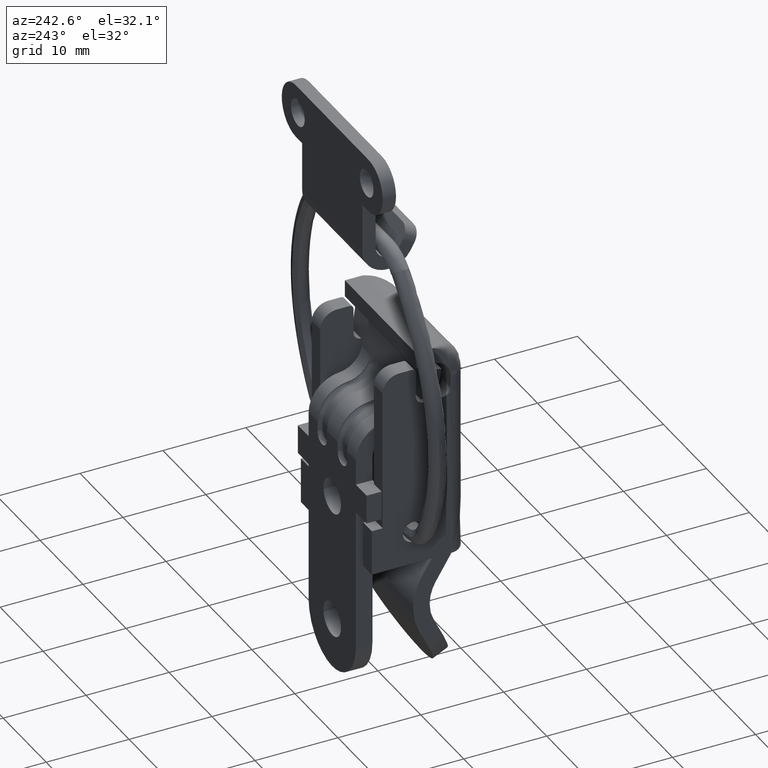
[diagram: clean part render]
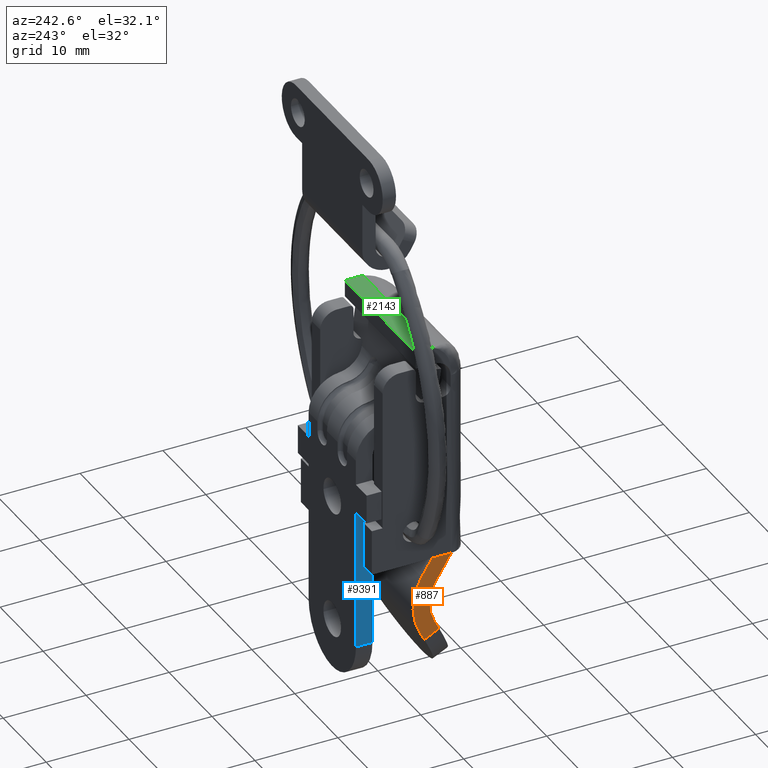
[diagram: same view with three faces highlighted in distinct colors, each labeled with its STEP entity id]
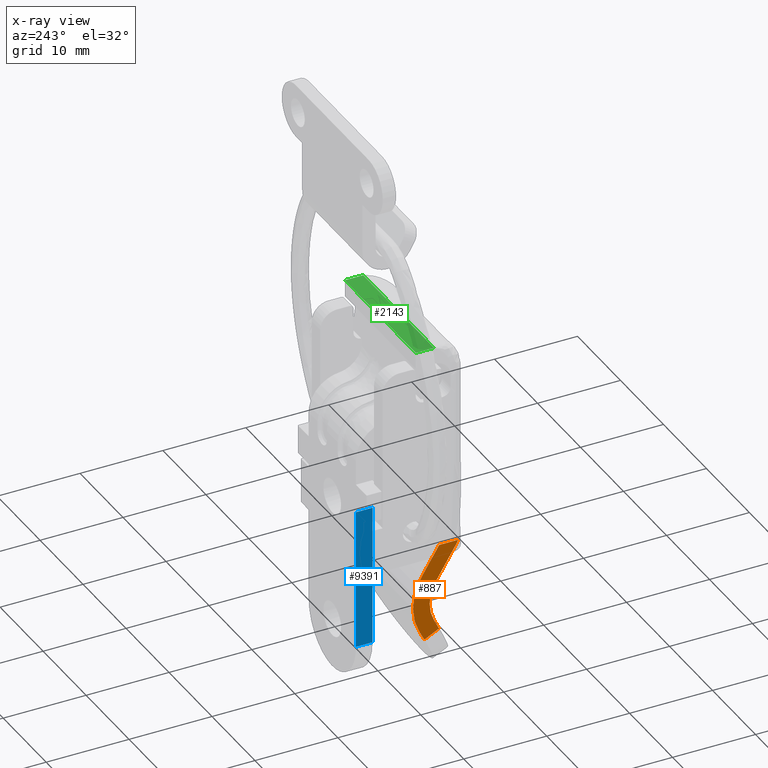
[diagram: x-ray of the same camera — body ghosted, the three highlighted faces saturated]
A machine part, auxiliary view with three faces highlighted in distinct colors.
The next image is the same camera in x-ray (body ghosted, the three faces saturated) — at least one of them is partly hidden behind the body in this view.
Their STEP definitions:

[orange] entity #887 — the highlighted face is a freeform B-spline surface patch.
#469=CARTESIAN_POINT('',(-6.250000000000000,-6.418542524975880,-4.0));
#470=VERTEX_POINT('',#469);
#476=CARTESIAN_POINT('',(-6.250000000000000,-6.204394350420690,-4.481468461891975));
#477=VERTEX_POINT('',#476);
#478=CARTESIAN_POINT('',(-6.250000000000000,-6.204394350420692,-4.481468461891975));
#479=CARTESIAN_POINT('',(-6.250000000000001,-6.343460698089419,-4.254963790522400));
#480=CARTESIAN_POINT('',(-6.250000000000000,-6.418542524975878,-3.999999999999999));
#488=(BOUNDED_CURVE()B_SPLINE_CURVE(2,(#478,#479,#480),.UNSPECIFIED.,.F.,.U.)CURVE()GEOMETRIC_REPRESENTATION_ITEM()QUASI_UNIFORM_CURVE()RATIONAL_B_SPLINE_CURVE((1.0,0.991284793826239,1.0))REPRESENTATION_ITEM(''));
#489=EDGE_CURVE('',#477,#470,#488,.T.);
#539=CARTESIAN_POINT('',(-6.250000000000000,-4.145573080182395,-14.526474857113620));
#540=VERTEX_POINT('',#539);
#558=CARTESIAN_POINT('',(-6.250000000000000,-2.366341638071165,-15.439894517190250));
#559=VERTEX_POINT('',#558);
#560=CARTESIAN_POINT('',(-6.250000000000000,-2.366341638071165,-15.439894517190250));
#561=CARTESIAN_POINT('',(-6.250000000000000,-4.145573080182395,-14.526474857113620));
#562=QUASI_UNIFORM_CURVE('',1,(#560,#561),.UNSPECIFIED.,.F.,.U.);
#563=EDGE_CURVE('',#559,#540,#562,.T.);
#596=CARTESIAN_POINT('',(-6.250000000000000,-1.780095853759490,-14.297953553410540));
#597=VERTEX_POINT('',#596);
#598=CARTESIAN_POINT('',(-6.250000000000000,-1.780095853759490,-14.297953553410540));
#599=CARTESIAN_POINT('',(-6.250000000000000,-2.366341638071165,-15.439894517190250));
#600=QUASI_UNIFORM_CURVE('',1,(#598,#599),.UNSPECIFIED.,.F.,.U.);
#601=EDGE_CURVE('',#597,#559,#600,.T.);
#623=CARTESIAN_POINT('',(-6.250000000000000,-3.559328859480525,-13.384536939070260));
#624=VERTEX_POINT('',#623);
#625=CARTESIAN_POINT('',(-6.250000000000000,-4.145573080182395,-14.526474857113620));
#626=CARTESIAN_POINT('',(-6.250000000000000,-3.559328859480525,-13.384536939070260));
#627=QUASI_UNIFORM_CURVE('',1,(#625,#626),.UNSPECIFIED.,.F.,.U.);
#628=EDGE_CURVE('',#540,#624,#627,.T.);
#660=CARTESIAN_POINT('',(-6.250000000000000,-3.746425497731890,-8.484891551287801));
#661=VERTEX_POINT('',#660);
#662=CARTESIAN_POINT('',(-6.250000000000000,-3.559328859480520,-13.384536939070260));
#663=CARTESIAN_POINT('',(-6.250000000000000,-2.274628446938895,-10.882084782440327));
#664=CARTESIAN_POINT('',(-6.250000000000000,-3.746425497731887,-8.484891551287799));
#672=(BOUNDED_CURVE()B_SPLINE_CURVE(2,(#662,#663,#664),.UNSPECIFIED.,.F.,.U.)CURVE()GEOMETRIC_REPRESENTATION_ITEM()QUASI_UNIFORM_CURVE()RATIONAL_B_SPLINE_CURVE((1.0,0.871541564826010,1.0))REPRESENTATION_ITEM(''));
#673=EDGE_CURVE('',#624,#661,#672,.T.);
#710=CARTESIAN_POINT('',(-6.250000000000000,-3.746425497731890,-8.484891551287801));
#711=CARTESIAN_POINT('',(-6.250000000000000,-6.204394350420690,-4.481468461891975));
#712=QUASI_UNIFORM_CURVE('',1,(#710,#711),.UNSPECIFIED.,.F.,.U.);
#713=EDGE_CURVE('',#661,#477,#712,.T.);
#785=CARTESIAN_POINT('',(-6.250000000000000,-4.153125288163020,-4.0));
#786=VERTEX_POINT('',#785);
#807=CARTESIAN_POINT('',(-6.250000000000000,-2.042031147311400,-7.438450010515110));
#808=VERTEX_POINT('',#807);
#814=CARTESIAN_POINT('',(-6.250000000000000,-4.153125288163020,-4.0));
#815=CARTESIAN_POINT('',(-6.250000000000000,-2.042031147311400,-7.438450010515110));
#816=QUASI_UNIFORM_CURVE('',1,(#814,#815),.UNSPECIFIED.,.F.,.U.);
#817=EDGE_CURVE('',#786,#808,#816,.T.);
#836=CARTESIAN_POINT('',(-6.250000000000000,-1.780095853759478,-14.297953553410551));
#837=CARTESIAN_POINT('',(-6.250000000000000,0.018484723798786,-10.794520534128639));
#838=CARTESIAN_POINT('',(-6.250000000000000,-2.042031147311398,-7.438450010515109));
#846=(BOUNDED_CURVE()B_SPLINE_CURVE(2,(#836,#837,#838),.UNSPECIFIED.,.F.,.U.)CURVE()GEOMETRIC_REPRESENTATION_ITEM()QUASI_UNIFORM_CURVE()RATIONAL_B_SPLINE_CURVE((1.0,0.871541564826011,1.0))REPRESENTATION_ITEM(''));
#847=EDGE_CURVE('',#597,#808,#846,.T.);
#867=CARTESIAN_POINT('',(-6.250000000000000,-6.688825558810204,-16.011317440930259));
#868=CARTESIAN_POINT('',(-6.250000000000000,-0.737184192056983,-16.011317440930259));
#869=CARTESIAN_POINT('',(-6.250000000000000,-6.688825558810204,-3.428576973979367));
#870=CARTESIAN_POINT('',(-6.250000000000000,-0.737184192056983,-3.428576973979367));
#871=B_SPLINE_SURFACE_WITH_KNOTS('',1,1,((#867,#869),(#868,#870)),.UNSPECIFIED.,.F.,.F.,.U.,(2,2),(2,2),(0.0,5.951641366753221),(0.0,12.582740466950890),.UNSPECIFIED.);
#872=ORIENTED_EDGE('',*,*,#713,.T.);
#873=ORIENTED_EDGE('',*,*,#489,.T.);
#874=CARTESIAN_POINT('',(-6.250000000000000,-6.418542524975880,-4.0));
#875=CARTESIAN_POINT('',(-6.250000000000000,-4.153125288163020,-4.0));
#876=QUASI_UNIFORM_CURVE('',1,(#874,#875),.UNSPECIFIED.,.F.,.U.);
#877=EDGE_CURVE('',#470,#786,#876,.T.);
#878=ORIENTED_EDGE('',*,*,#877,.T.);
#879=ORIENTED_EDGE('',*,*,#817,.T.);
#880=ORIENTED_EDGE('',*,*,#847,.F.);
#881=ORIENTED_EDGE('',*,*,#601,.T.);
#882=ORIENTED_EDGE('',*,*,#563,.T.);
#883=ORIENTED_EDGE('',*,*,#628,.T.);
#884=ORIENTED_EDGE('',*,*,#673,.T.);
#885=EDGE_LOOP('',(#872,#873,#878,#879,#880,#881,#882,#883,#884));
#886=FACE_OUTER_BOUND('',#885,.T.);
#887=ADVANCED_FACE('',(#886),#871,.F.);

[blue] entity #9391 — the highlighted face is a freeform B-spline surface patch.
#5376=CARTESIAN_POINT('',(-5.500000000000000,3.500000000000000,-14.500000000000000));
#5377=VERTEX_POINT('',#5376);
#5395=CARTESIAN_POINT('',(-5.500000000000000,5.500000000000000,-14.500000000000000));
#5396=VERTEX_POINT('',#5395);
#5397=CARTESIAN_POINT('',(-5.500000000000000,5.500000000000000,-14.500000000000000));
#5398=CARTESIAN_POINT('',(-5.500000000000000,3.500000000000000,-14.500000000000000));
#5399=QUASI_UNIFORM_CURVE('',1,(#5397,#5398),.UNSPECIFIED.,.F.,.U.);
#5400=EDGE_CURVE('',#5396,#5377,#5399,.T.);
#8881=CARTESIAN_POINT('',(-5.500000000000000,3.500000000000000,2.500000000000000));
#8882=VERTEX_POINT('',#8881);
#8883=CARTESIAN_POINT('',(-5.500000000000000,5.500000000000000,2.500000000000000));
#8884=VERTEX_POINT('',#8883);
#8885=CARTESIAN_POINT('',(-5.500000000000000,3.500000000000000,2.500000000000000));
#8886=CARTESIAN_POINT('',(-5.500000000000000,5.500000000000000,2.500000000000000));
#8887=QUASI_UNIFORM_CURVE('',1,(#8885,#8886),.UNSPECIFIED.,.F.,.U.);
#8888=EDGE_CURVE('',#8882,#8884,#8887,.T.);
#9372=CARTESIAN_POINT('',(-5.500000000000000,3.400100003876388,3.349149967050699));
#9373=CARTESIAN_POINT('',(-5.500000000000000,5.599900049767792,3.349149967050699));
#9374=CARTESIAN_POINT('',(-5.500000000000000,3.400100003876388,-15.349150423026240));
#9375=CARTESIAN_POINT('',(-5.500000000000000,5.599900049767792,-15.349150423026240));
#9376=B_SPLINE_SURFACE_WITH_KNOTS('',1,1,((#9372,#9374),(#9373,#9375)),.UNSPECIFIED.,.F.,.F.,.U.,(2,2),(2,2),(0.0,2.199800045891405),(0.0,18.698300390076930),.UNSPECIFIED.);
#9377=CARTESIAN_POINT('',(-5.500000000000000,5.500000000000000,2.500000000000000));
#9378=CARTESIAN_POINT('',(-5.500000000000000,5.500000000000000,-14.500000000000000));
#9379=QUASI_UNIFORM_CURVE('',1,(#9377,#9378),.UNSPECIFIED.,.F.,.U.);
#9380=EDGE_CURVE('',#8884,#5396,#9379,.T.);
#9381=ORIENTED_EDGE('',*,*,#9380,.T.);
#9382=ORIENTED_EDGE('',*,*,#5400,.T.);
#9383=CARTESIAN_POINT('',(-5.500000000000000,3.500000000000000,-14.500000000000000));
#9384=CARTESIAN_POINT('',(-5.500000000000000,3.500000000000000,2.500000000000000));
#9385=QUASI_UNIFORM_CURVE('',1,(#9383,#9384),.UNSPECIFIED.,.F.,.U.);
#9386=EDGE_CURVE('',#5377,#8882,#9385,.T.);
#9387=ORIENTED_EDGE('',*,*,#9386,.T.);
#9388=ORIENTED_EDGE('',*,*,#8888,.T.);
#9389=EDGE_LOOP('',(#9381,#9382,#9387,#9388));
#9390=FACE_OUTER_BOUND('',#9389,.T.);
#9391=ADVANCED_FACE('',(#9390),#9376,.T.);

[green] entity #2143 — the highlighted face is a freeform B-spline surface patch.
#1289=CARTESIAN_POINT('',(-8.250000000000000,-2.500000000000000,22.500000000000000));
#1290=VERTEX_POINT('',#1289);
#1748=CARTESIAN_POINT('',(8.250000000000000,-2.500000000000000,22.500000000000000));
#1749=VERTEX_POINT('',#1748);
#2112=CARTESIAN_POINT('',(9.074174968019799,-2.609889845885968,22.500000000000000));
#2113=CARTESIAN_POINT('',(-9.074175410584285,-2.609889845885968,22.500000000000000));
#2114=CARTESIAN_POINT('',(9.074174968019799,-0.190113095105717,22.500000000000000));
#2115=CARTESIAN_POINT('',(-9.074175410584285,-0.190113095105717,22.500000000000000));
#2116=B_SPLINE_SURFACE_WITH_KNOTS('',1,1,((#2112,#2114),(#2113,#2115)),.UNSPECIFIED.,.F.,.F.,.U.,(2,2),(2,2),(0.0,18.148350378604089),(0.0,2.419776750780252),.UNSPECIFIED.);
#2117=CARTESIAN_POINT('',(-8.250000000000000,-0.300003000000203,22.500000000000000));
#2118=VERTEX_POINT('',#2117);
#2119=CARTESIAN_POINT('',(-8.250000000000000,-0.300003000000203,22.500000000000000));
#2120=CARTESIAN_POINT('',(-8.250000000000000,-2.500000000000000,22.500000000000000));
#2121=QUASI_UNIFORM_CURVE('',1,(#2119,#2120),.UNSPECIFIED.,.F.,.U.);
#2122=EDGE_CURVE('',#2118,#1290,#2121,.T.);
#2123=ORIENTED_EDGE('',*,*,#2122,.T.);
#2124=CARTESIAN_POINT('',(8.250000000000000,-2.500000000000000,22.500000000000000));
#2125=CARTESIAN_POINT('',(-8.250000000000000,-2.500000000000000,22.500000000000000));
#2126=QUASI_UNIFORM_CURVE('',1,(#2124,#2125),.UNSPECIFIED.,.F.,.U.);
#2127=EDGE_CURVE('',#1749,#1290,#2126,.T.);
#2128=ORIENTED_EDGE('',*,*,#2127,.F.);
#2129=CARTESIAN_POINT('',(8.250000000000000,-0.300003000000203,22.500000000000000));
#2130=VERTEX_POINT('',#2129);
#2131=CARTESIAN_POINT('',(8.250000000000000,-0.300003000000203,22.500000000000000));
#2132=CARTESIAN_POINT('',(8.250000000000000,-2.500000000000000,22.500000000000000));
#2133=QUASI_UNIFORM_CURVE('',1,(#2131,#2132),.UNSPECIFIED.,.F.,.U.);
#2134=EDGE_CURVE('',#2130,#1749,#2133,.T.);
#2135=ORIENTED_EDGE('',*,*,#2134,.F.);
#2136=CARTESIAN_POINT('',(8.250000000000000,-0.300003000000203,22.500000000000000));
#2137=CARTESIAN_POINT('',(-8.250000000000000,-0.300003000000203,22.500000000000000));
#2138=QUASI_UNIFORM_CURVE('',1,(#2136,#2137),.UNSPECIFIED.,.F.,.U.);
#2139=EDGE_CURVE('',#2130,#2118,#2138,.T.);
#2140=ORIENTED_EDGE('',*,*,#2139,.T.);
#2141=EDGE_LOOP('',(#2123,#2128,#2135,#2140));
#2142=FACE_OUTER_BOUND('',#2141,.T.);
#2143=ADVANCED_FACE('',(#2142),#2116,.F.);